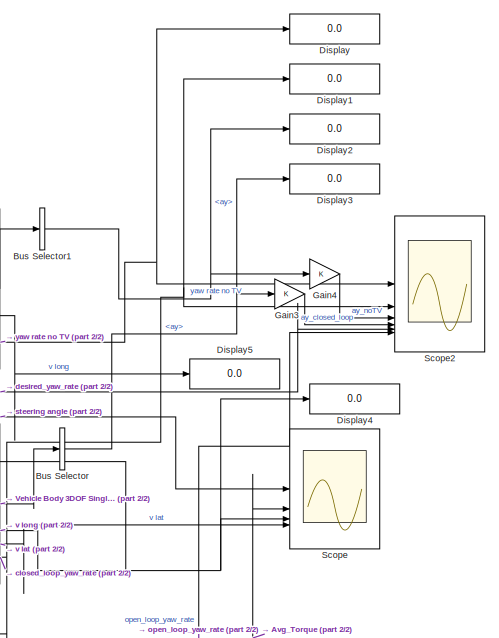
[diagram: root canvas - part 1/2, middle right region]
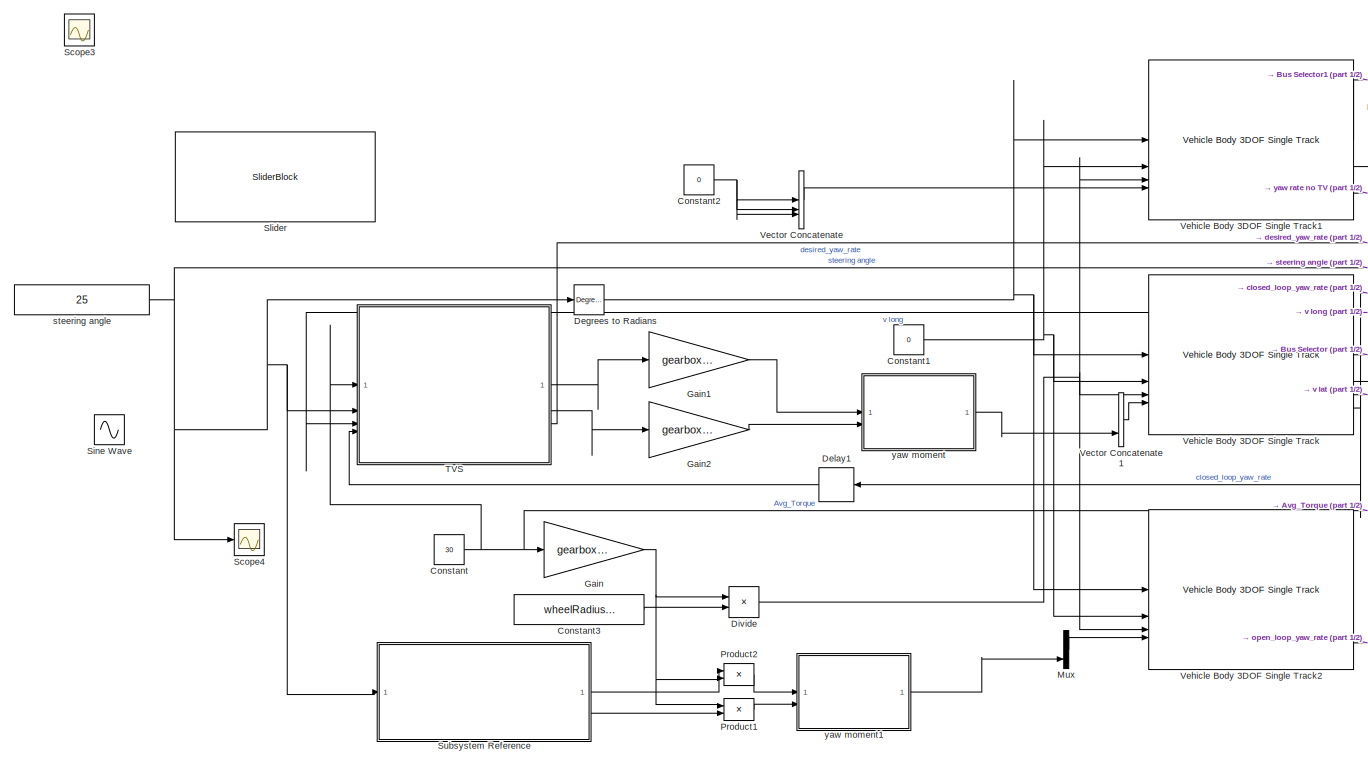
[diagram: root canvas - part 2/2, most of the canvas]
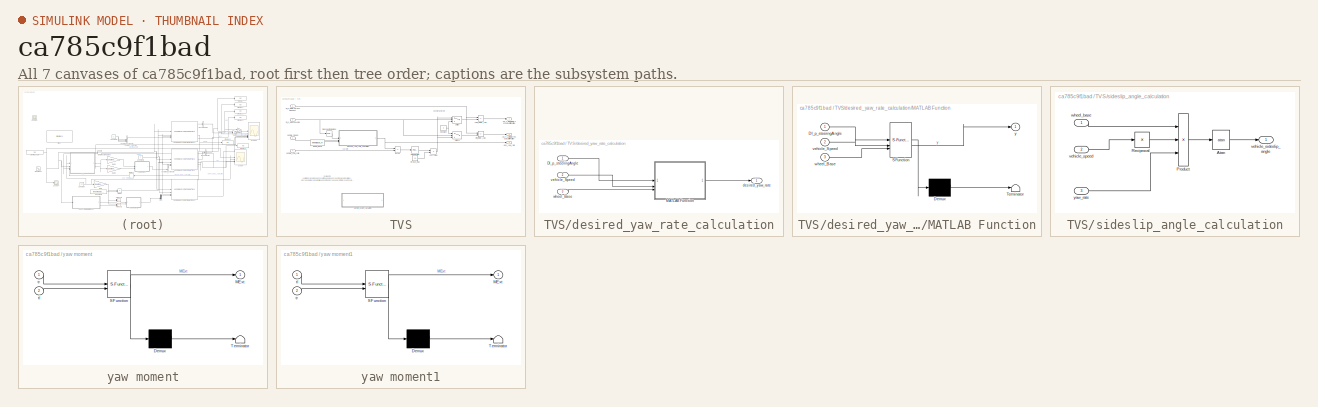
[diagram: thumbnail index - all 7 canvases of the model, root first then tree order]
MODEL slx_ca785c9f1bad
KIND model
CONFIG AbsTol = auto
CONFIG EnableMultiTasking = off
CONFIG FixedStep = 0.01
CONFIG MaxStep = auto
CONFIG MinStep = auto
CONFIG RelTol = 1e-3
CONFIG SampleTimeConstraint = Unconstrained
CONFIG SolverName = FixedStepAuto
CONFIG StartTime = 0.0
CONFIG StopTime = 20
BLOCK [BusSelector] Bus Selector
  OutputSignals = BdyFrm.Cg.Acc.ay
BLOCK [BusSelector] Bus Selector1
  OutputSignals = BdyFrm.Cg.Acc.ay
BLOCK [Constant] Constant
  Value = 30
BLOCK [Constant] Constant1
  Value = 0
BLOCK [Constant] Constant2
  Value = 0
BLOCK [Constant] Constant3
  Value = wheelRadius_m
BLOCK [Reference] Degrees to Radians  REF=simulink_extras/Transformations/Degrees to
Radians
  SourceBlock = simulink_extras/Transformations/Degrees to\nRadians
  SourceType = DegreesToRadians
BLOCK [Delay] Delay1
  DelayLength = 1
  InputPortMap = u0
  NameLocation = top
BLOCK [Display] Display
  Decimation = 1
BLOCK [Display] Display1
  Decimation = 1
BLOCK [Display] Display2
  Decimation = 1
BLOCK [Display] Display3
  Decimation = 1
BLOCK [Display] Display4
  Decimation = 1
BLOCK [Display] Display5
  Decimation = 1
BLOCK [Product] Divide
  Inputs = */
BLOCK [Gain] Gain
  Gain = gearboxRatio
BLOCK [Gain] Gain1
  Gain = gearboxRatio
BLOCK [Gain] Gain2
  Gain = gearboxRatio
BLOCK [Gain] Gain3
BLOCK [Gain] Gain4
BLOCK [Mux] Mux
  DisplayOption = bar
  Inputs = 3
BLOCK [Product] Product1
BLOCK [Product] Product2
BLOCK [Scope] Scope
  Floating = off
  NumInputPorts = 4
  ScopeSpecificationString = Simulink.scopes.TimeScopeBlockCfg('CurrentConfiguration', extmgr.ConfigurationSet(extmgr.Configuration('Core','General UI',true),extmgr.Configuration('Core','Source UI',true),extmgr.Configuration('Sources','WiredSimulink',true,'DataLoggingVariableName','ScopeData1'),extmgr.Configuration('Visuals','Time Domain',true,'SerializedDisplays',{struct('MinYLimReal','-4.12024','MaxYLimReal','28.23558','YLa...<+1597ch>
BLOCK [Scope] Scope2
  Floating = off
  NumInputPorts = 6
  ScopeSpecificationString = Simulink.scopes.TimeScopeBlockCfg('CurrentConfiguration', extmgr.ConfigurationSet(extmgr.Configuration('Core','General UI',true),extmgr.Configuration('Core','Source UI',true),extmgr.Configuration('Sources','WiredSimulink',true,'DataLoggingVariableName','ScopeData2'),extmgr.Configuration('Visuals','Time Domain',true,'SerializedDisplays',{struct('MinYLimReal','0.00584','MaxYLimReal','2.74901','YLabe...<+1564ch>
BLOCK [Scope] Scope3
  Floating = off
  IOType = viewer
  NumInputPorts = 1
  ScopeSpecificationString = Simulink.scopes.TimeScopeBlockCfg('CurrentConfiguration', extmgr.ConfigurationSet(extmgr.Configuration('Core','General UI',true),extmgr.Configuration('Core','Source UI',true),extmgr.Configuration('Sources','WiredSimulink',true,'DataLoggingVariableName','ScopeData3'),extmgr.Configuration('Visuals','Time Domain',true,'SerializedDisplays',{struct('MinYLimReal','-10.00000','MaxYLimReal','10.00000','YL...<+1365ch>
BLOCK [Scope] Scope4
  Floating = off
  NumInputPorts = 1
  ScopeSpecificationString = Simulink.scopes.TimeScopeBlockCfg('CurrentConfiguration', extmgr.ConfigurationSet(extmgr.Configuration('Core','General UI',true),extmgr.Configuration('Core','Source UI',true),extmgr.Configuration('Sources','WiredSimulink',true,'DataLoggingVariableName','ScopeData3'),extmgr.Configuration('Visuals','Time Domain',true,'SerializedDisplays',{struct('MinYLimReal','15.00000','MaxYLimReal','35.00000','YLa...<+1450ch>
BLOCK [Sin] Sine Wave
  Amplitude = 25
  SampleTime = 0
BLOCK [SliderBlock] Slider
  ScaleMax = 25
  ScaleMin = -25
BLOCK [SubSystem] Subsystem Reference
  ReferencedSubsystem = open_loop_tv
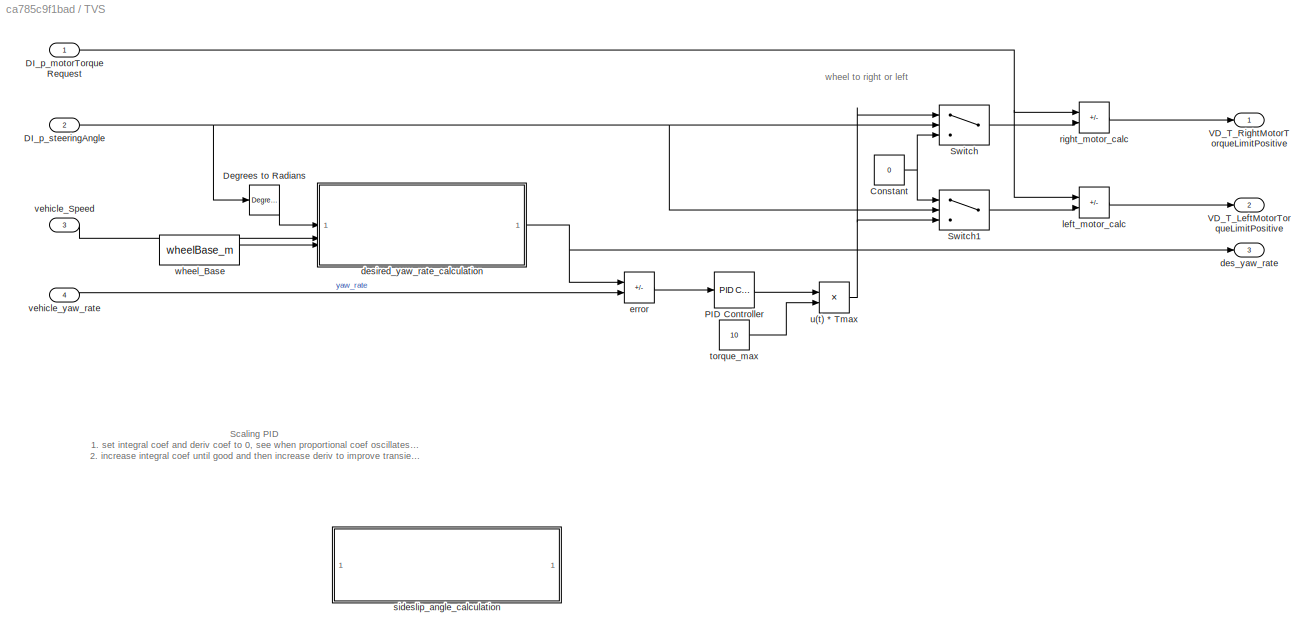
BLOCK [SubSystem] TVS
BLOCK [Constant] TVS/Constant
  Value = 0
BLOCK [Inport] TVS/DI_p_motorTorqueRequest
BLOCK [Inport] TVS/DI_p_steeringAngle
  Port = 2
BLOCK [Reference] TVS/Degrees to Radians  REF=simulink_extras/Transformations/Degrees to
Radians
  SourceBlock = simulink_extras/Transformations/Degrees to\nRadians
  SourceType = DegreesToRadians
BLOCK [Reference] TVS/PID Controller  REF=slpidlib/PID Controller
  LibrarySourceBlock = simulink/Continuous/PID Controller
  SourceBlock = slpidlib/PID Controller
  SourceType = PID 1dof
BLOCK [Switch] TVS/Switch
  Criteria = u2 > Threshold
  InputSameDT = off
  SaturateOnIntegerOverflow = off
BLOCK [Switch] TVS/Switch1
  Criteria = u2 > Threshold
  InputSameDT = off
  SaturateOnIntegerOverflow = off
BLOCK [Outport] TVS/VD_T_LeftMotorTorqueLimitPositive
  Port = 2
BLOCK [Outport] TVS/VD_T_RightMotorTorqueLimitPositive
BLOCK [Outport] TVS/des_yaw_rate
  Port = 3
BLOCK [SubSystem] TVS/desired_yaw_rate_calculation
BLOCK [Inport] TVS/desired_yaw_rate_calculation/DI_p_steeringAngle
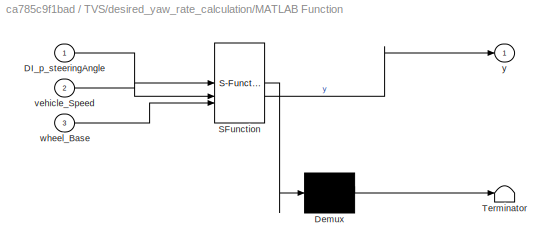
BLOCK [SubSystem] TVS/desired_yaw_rate_calculation/MATLAB Function
  ErrorFcn = Stateflow.Translate.translate
  LibrarySourceBlock = simulink/User-Defined\nFunctions/MATLAB Function
  PermitHierarchicalResolution = ExplicitOnly
  SFBlockType = MATLAB Function
  TreatAsAtomicUnit = on
BLOCK [Demux] TVS/desired_yaw_rate_calculation/MATLAB Function/ Demux 
  Outputs = 1
BLOCK [S-Function] TVS/desired_yaw_rate_calculation/MATLAB Function/ SFunction 
  EnableBusSupport = on
  FunctionName = sf_sfun
  PortCounts = [3 2]
  SFcnIsStateOwnerBlock = off
  SFunctionDeploymentMode = off
  Tag = Stateflow S-Function 3
BLOCK [Terminator] TVS/desired_yaw_rate_calculation/MATLAB Function/ Terminator 
BLOCK [Inport] TVS/desired_yaw_rate_calculation/MATLAB Function/DI_p_steeringAngle
BLOCK [Inport] TVS/desired_yaw_rate_calculation/MATLAB Function/vehicle_Speed
  Port = 2
BLOCK [Inport] TVS/desired_yaw_rate_calculation/MATLAB Function/wheel_Base
  Port = 3
BLOCK [Outport] TVS/desired_yaw_rate_calculation/MATLAB Function/y
BLOCK [Outport] TVS/desired_yaw_rate_calculation/desired_yaw_rate
BLOCK [Inport] TVS/desired_yaw_rate_calculation/vehicle_Speed
  Port = 2
BLOCK [Inport] TVS/desired_yaw_rate_calculation/wheel_Base
  Port = 3
BLOCK [Sum] TVS/error
  IconShape = rectangular
  Inputs = +-
BLOCK [Sum] TVS/left_motor_calc
  IconShape = rectangular
  Inputs = +-
BLOCK [Sum] TVS/right_motor_calc
  IconShape = rectangular
  Inputs = +-
BLOCK [SubSystem] TVS/sideslip_angle_calculation
  Commented = on
BLOCK [Trigonometry] TVS/sideslip_angle_calculation/Atan
  Operator = atan
BLOCK [Product] TVS/sideslip_angle_calculation/Product
  Inputs = 3
BLOCK [Product] TVS/sideslip_angle_calculation/Reciprocal
  Inputs = /
BLOCK [Outport] TVS/sideslip_angle_calculation/vehicle_sideslip_angle
BLOCK [Inport] TVS/sideslip_angle_calculation/vehicle_speed
  Port = 2
BLOCK [Inport] TVS/sideslip_angle_calculation/wheel_base
BLOCK [Inport] TVS/sideslip_angle_calculation/yaw_rate
  Port = 3
BLOCK [Constant] TVS/torque_max
  Value = 10
BLOCK [Product] TVS/u(t) * Tmax
BLOCK [Inport] TVS/vehicle_Speed
  Port = 3
BLOCK [Inport] TVS/vehicle_yaw_rate
  Port = 4
BLOCK [Constant] TVS/wheel_Base
  Value = wheelBase_m
BLOCK [Concatenate] Vector Concatenate
  NumInputs = 3
BLOCK [Concatenate] Vector Concatenate1
  NumInputs = 3
BLOCK [Reference] Vehicle Body 3DOF Single Track  REF=autolibshared/Vehicle Body 3DOF Single Track
  LibrarySourceBlock = vehdynlibeom/Vehicle Body 3DOF Single Track
  SourceBlock = autolibshared/Vehicle Body 3DOF Single Track
  SourceType = Vehicle Body 3DOF Lateral
BLOCK [Reference] Vehicle Body 3DOF Single Track1  REF=autolibshared/Vehicle Body 3DOF Single Track
  LibrarySourceBlock = vehdynlibeom/Vehicle Body 3DOF Single Track
  SourceBlock = autolibshared/Vehicle Body 3DOF Single Track
  SourceType = Vehicle Body 3DOF Lateral
BLOCK [Reference] Vehicle Body 3DOF Single Track2  REF=autolibshared/Vehicle Body 3DOF Single Track
  LibrarySourceBlock = vehdynlibeom/Vehicle Body 3DOF Single Track
  SourceBlock = autolibshared/Vehicle Body 3DOF Single Track
  SourceType = Vehicle Body 3DOF Lateral
BLOCK [Constant] steering angle
  Value = 25
BLOCK [SubSystem] yaw moment
  ErrorFcn = Stateflow.Translate.translate
  LibrarySourceBlock = simulink/User-Defined\nFunctions/MATLAB Function
  PermitHierarchicalResolution = ExplicitOnly
  SFBlockType = MATLAB Function
  TreatAsAtomicUnit = on
BLOCK [Demux] yaw moment/ Demux 
  Outputs = 1
BLOCK [S-Function] yaw moment/ SFunction 
  EnableBusSupport = on
  FunctionName = sf_sfun
  PortCounts = [2 2]
  SFcnIsStateOwnerBlock = off
  SFunctionDeploymentMode = off
  Tag = Stateflow S-Function 2
BLOCK [Terminator] yaw moment/ Terminator 
BLOCK [Outport] yaw moment/MExt
BLOCK [Inport] yaw moment/tl
  Port = 2
BLOCK [Inport] yaw moment/tr
BLOCK [SubSystem] yaw moment1
  ErrorFcn = Stateflow.Translate.translate
  LibrarySourceBlock = simulink/User-Defined\nFunctions/MATLAB Function
  PermitHierarchicalResolution = ExplicitOnly
  SFBlockType = MATLAB Function
  TreatAsAtomicUnit = on
BLOCK [Demux] yaw moment1/ Demux 
  Outputs = 1
BLOCK [S-Function] yaw moment1/ SFunction 
  EnableBusSupport = on
  FunctionName = sf_sfun
  PortCounts = [2 2]
  SFcnIsStateOwnerBlock = off
  SFunctionDeploymentMode = off
  Tag = Stateflow S-Function 1
BLOCK [Terminator] yaw moment1/ Terminator 
BLOCK [Outport] yaw moment1/MExt
BLOCK [Inport] yaw moment1/tl
BLOCK [Inport] yaw moment1/tr
  Port = 2
ANNOTATION TVS: Scaling PID 1. set integral coef and deriv coef to 0, see when proportional coef oscillates, reduce until steady 2. increase integral coef until good and then increase deriv to improve transient response
ANNOTATION TVS: wheel to right or left
NET Bus Selector1:1 -> Display2:1, Gain4:1
NET Bus Selector:1 -> Display3:1, Gain3:1
NET Constant1:1 -> Vehicle Body 3DOF Single Track1:2, Vehicle Body 3DOF Single Track2:2, Vehicle Body 3DOF Single Track:2
NET Constant2:1 -> Vector Concatenate:1, Vector Concatenate:2, Vector Concatenate:3
LINE Constant3:1 -> Divide:2
NET Constant:1 -> Gain:1, Scope:2, TVS:1
NET Degrees to Radians:1 -> Vehicle Body 3DOF Single Track1:1, Vehicle Body 3DOF Single Track2:1, Vehicle Body 3DOF Single Track:1
LINE Delay1:1 -> TVS:4
NET Divide:1 -> Vehicle Body 3DOF Single Track1:3, Vehicle Body 3DOF Single Track2:3, Vehicle Body 3DOF Single Track:3
LINE Gain1:1 -> yaw moment:1
LINE Gain2:1 -> yaw moment:2
LINE Gain3:1 -> Scope2:4
LINE Gain4:1 -> Scope2:3
NET Gain:1 -> Divide:1, Product1:1, Product2:2
LINE Mux:1 -> Vehicle Body 3DOF Single Track2:4
LINE Product1:1 -> yaw moment1:2
LINE Product2:1 -> yaw moment1:1
LINE Subsystem Reference:1 -> Product2:1
LINE Subsystem Reference:2 -> Product1:2
NET TVS/Constant:1 -> TVS/Switch1:1, TVS/Switch:3
NET TVS/DI_p_motorTorqueRequest:1 -> TVS/left_motor_calc:1, TVS/right_motor_calc:1
NET TVS/DI_p_steeringAngle:1 -> TVS/Degrees to Radians:1, TVS/Switch1:2, TVS/Switch:2
LINE TVS/Degrees to Radians:1 -> TVS/desired_yaw_rate_calculation:1
LINE TVS/PID Controller:1 -> TVS/u(t) * Tmax:1
LINE TVS/Switch1:1 -> TVS/left_motor_calc:2
LINE TVS/Switch:1 -> TVS/right_motor_calc:2
LINE TVS/desired_yaw_rate_calculation/DI_p_steeringAngle:1 -> TVS/desired_yaw_rate_calculation/MATLAB Function:1
LINE TVS/desired_yaw_rate_calculation/MATLAB Function:1 -> TVS/desired_yaw_rate_calculation/desired_yaw_rate:1
LINE TVS/desired_yaw_rate_calculation/vehicle_Speed:1 -> TVS/desired_yaw_rate_calculation/MATLAB Function:2
LINE TVS/desired_yaw_rate_calculation/wheel_Base:1 -> TVS/desired_yaw_rate_calculation/MATLAB Function:3
NET TVS/desired_yaw_rate_calculation:1 -> TVS/des_yaw_rate:1, TVS/error:1
LINE TVS/error:1 -> TVS/PID Controller:1
LINE TVS/left_motor_calc:1 -> TVS/VD_T_LeftMotorTorqueLimitPositive:1
LINE TVS/right_motor_calc:1 -> TVS/VD_T_RightMotorTorqueLimitPositive:1
LINE TVS/sideslip_angle_calculation/Atan:1 -> TVS/sideslip_angle_calculation/vehicle_sideslip_angle:1
LINE TVS/sideslip_angle_calculation/Product:1 -> TVS/sideslip_angle_calculation/Atan:1
LINE TVS/sideslip_angle_calculation/Reciprocal:1 -> TVS/sideslip_angle_calculation/Product:2
LINE TVS/sideslip_angle_calculation/vehicle_speed:1 -> TVS/sideslip_angle_calculation/Reciprocal:1
LINE TVS/sideslip_angle_calculation/wheel_base:1 -> TVS/sideslip_angle_calculation/Product:1
LINE TVS/sideslip_angle_calculation/yaw_rate:1 -> TVS/sideslip_angle_calculation/Product:3
LINE TVS/torque_max:1 -> TVS/u(t) * Tmax:2
NET TVS/u(t) * Tmax:1 -> TVS/Switch1:3, TVS/Switch:1
LINE TVS/vehicle_Speed:1 -> TVS/desired_yaw_rate_calculation:2
LINE TVS/vehicle_yaw_rate:1 -> TVS/error:2
LINE TVS/wheel_Base:1 -> TVS/desired_yaw_rate_calculation:3
LINE TVS:1 -> Gain1:1
LINE TVS:2 -> Gain2:1
LINE TVS:3 -> Scope2:5
LINE Vector Concatenate1:1 -> Vehicle Body 3DOF Single Track:4
LINE Vector Concatenate:1 -> Vehicle Body 3DOF Single Track1:4
LINE Vehicle Body 3DOF Single Track1:1 -> Bus Selector1:1
LINE Vehicle Body 3DOF Single Track1:2 -> Display5:1
NET Vehicle Body 3DOF Single Track1:5 -> Display:1, Scope2:1
LINE Vehicle Body 3DOF Single Track2:5 -> Scope2:6
LINE Vehicle Body 3DOF Single Track:1 -> Bus Selector:1
NET Vehicle Body 3DOF Single Track:2 -> Display4:1, Scope:3, TVS:3
LINE Vehicle Body 3DOF Single Track:3 -> Scope:4
NET Vehicle Body 3DOF Single Track:5 -> Delay1:1, Display1:1, Scope2:2
NET steering angle:1 -> Degrees to Radians:1, Scope4:1, Scope:1, Subsystem Reference:1, TVS:2
LINE yaw moment1:1 -> Mux:3
LINE yaw moment:1 -> Vector Concatenate1:3
note: NET lines group one-source signal fan-out (src -> all destinations, sorted); 1:1 wires keep LINE
CHART yaw moment states=1 transitions=1
  STATE_LABEL 'eML_blk_kernel()'
  STATE_LABEL 'SCRIPT:\nfunction MExt = fcn(tr,tl)\n\ntr = double(tr);\ntl = double(tl);\n\n\nm = (tl/0.203-tr/0.203)*0.5*1.285;\nMExt = m;\n'
CHART TVS/desired_yaw_rate_calculation/MATLAB Function states=1 transitions=1
  STATE_LABEL 'eML_blk_kernel()'
  STATE_LABEL 'SCRIPT:\nfunction y = fcn(DI_p_steeringAngle, vehicle_Speed, wheel_Base)\n\nKus = 0.0026;\n\ny = vehicle_Speed * DI_p_steeringAngle/ (wheel_Base + Kus * vehicle_Speed^2);'
CHART yaw moment1 states=1 transitions=1
  STATE_LABEL 'eML_blk_kernel()'
  STATE_LABEL 'SCRIPT:\nfunction MExt = fcn(tl,tr)\n\ntl = double(tl);\ntr = double(tr);\n\nm = (tl/0.203-tr/0.203)*0.5*1.285;\nMExt = m;\n'
CHART  states=0 transitions=0
CHART  states=0 transitions=0
CHART  states=0 transitions=0
